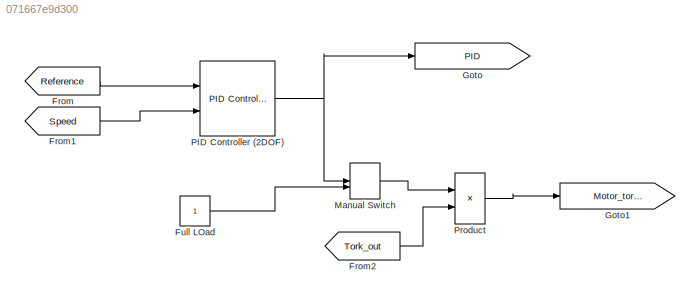
MODEL slx_071667e9d300
KIND model
CONFIG AbsTol = auto
CONFIG EnableMultiTasking = off
CONFIG FixedStep = auto
CONFIG MaxStep = auto
CONFIG MinStep = auto
CONFIG RelTol = 1e-3
CONFIG SampleTimeConstraint = Unconstrained
CONFIG Solver = VariableStepAuto
CONFIG SolverName = VariableStepAuto
CONFIG StartTime = 0.0
CONFIG StopTime = 10.0
BLOCK [From] From
  GotoTag = Reference
BLOCK [From] From1
  GotoTag = Speed
BLOCK [From] From2
  GotoTag = Tork_out
BLOCK [Constant] Full LOad
BLOCK [Goto] Goto
  GotoTag = PID
BLOCK [Goto] Goto1
  GotoTag = Motor_torque
BLOCK [ManualSwitch] Manual Switch
BLOCK [Reference] PID Controller (2DOF)  REF=simulink/Continuous/PID Controller (2DOF)
  Ports = [2, 1]
  SourceBlock = simulink/Continuous/PID Controller (2DOF)
  SourceProductBaseCode = SL
  SourceType = PID 2dof
BLOCK [Product] Product
  Ports = [2, 1]
LINE From1:1 -> PID Controller (2DOF):2
LINE From2:1 -> Product:2
LINE From:1 -> PID Controller (2DOF):1
LINE Full LOad:1 -> Manual Switch:2
LINE Manual Switch:1 -> Product:1
NET PID Controller (2DOF):1 -> Goto:1, Manual Switch:1
LINE Product:1 -> Goto1:1
note: NET lines group one-source signal fan-out (src -> all destinations, sorted); 1:1 wires keep LINE
